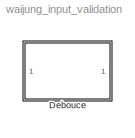
MODEL waijung_input_validation
KIND library
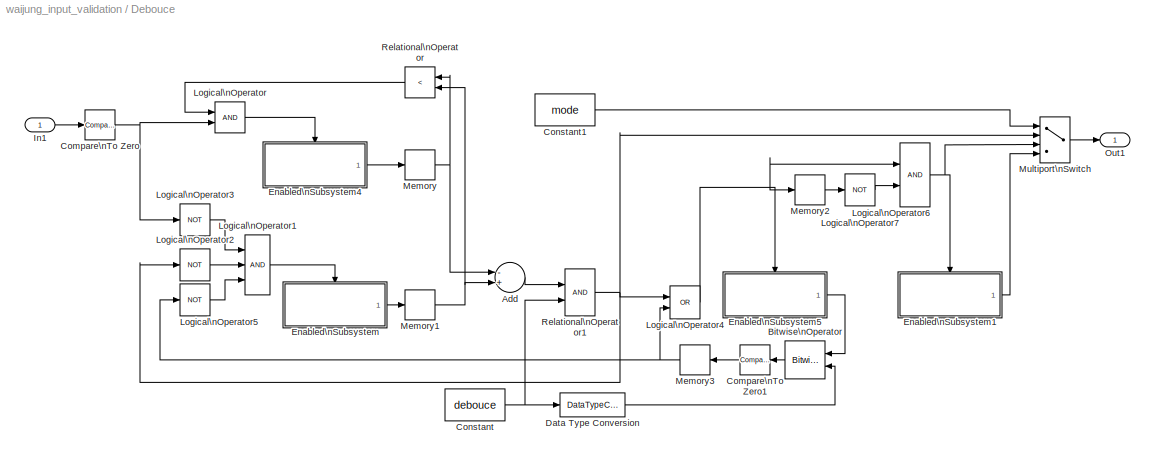
BLOCK [SubSystem] Debouce
  FunctionWithSeparateData = off
  MaskCallbackString = waijung_intput_validation_callback('mode');||waijung_intput_validation_callback('prescale');
  MaskDisplay = disp('Button Pressed\\n(Normal)');
  MaskEnableString = on,on,off
  MaskHideContents = off
  MaskIconFrame = on
  MaskIconOpaque = on
  MaskIconRotate = none
  MaskIconUnits = autoscale
  MaskPortRotate = default
  MaskPromptString = Mode|Prescale (Debouce count)|Debouce value
  MaskSelfModifiable = on
  MaskStyleString = popup(Normal|Single Pulse|Toggle Latch),popup(4|8|16|32|64|128|256|512|1024|2048|4096|8192),edit
  MaskTabNameString = ,,
  MaskToolTipString = on,on,on
  MaskTunableValueString = on,on,on
  MaskValueString = Normal|4|3
  MaskVarAliasString = ,,
  MaskVariables = mode=@1;prescale=@2;debouce=@3;
  MaskVisibilityString = on,on,off
  MinAlgLoopOccurrences = off
  Opaque = off
  Ports = [1, 1]
  PropExecContextOutsideSubsystem = off
  RTWFcnNameOpts = Use subsystem name
  RTWFileNameOpts = Use function name
  RTWSystemCode = Reusable function
  RequestExecContextInheritance = off
  TreatAsAtomicUnit = on
BLOCK [Sum] Debouce/Add
  InputSameDT = off
  Inputs = -+
  OutDataType = fixdt(1, 16)
  OutDataTypeMode = int32
  OutDataTypeStr = int32
  OutScaling = 2^-10
  Ports = [2, 1]
  SaturateOnIntegerOverflow = off
BLOCK [Reference] Debouce/Bitwise\nOperator  REF=simulink/Logic and Bit\nOperations/Bitwise\nOperator
  BitMask = debouce
  BitMaskRealWorld = Stored Integer
  NumInputPorts = 2
  Ports = [2, 1]
  SourceBlock = simulink/Logic and Bit\nOperations/Bitwise\nOperator
  SourceType = Bitwise Operator
  UseBitMask = off
  logicop = AND
BLOCK [Reference] Debouce/Compare\nTo Zero  REF=simulink/Logic and Bit\nOperations/Compare\nTo Zero
  FunctionWithSeparateData = off
  LogicOutDataTypeMode = uint8
  Ports = [1, 1]
  RTWMemSecDataConstants = Inherit from model
  RTWMemSecDataInternal = Inherit from model
  RTWMemSecDataParameters = Inherit from model
  RTWMemSecFuncExecute = Inherit from model
  RTWMemSecFuncInitTerm = Inherit from model
  ShowPortLabels = FromPortIcon
  SourceBlock = simulink/Logic and Bit\nOperations/Compare\nTo Zero
  SourceType = Compare To Zero
  SystemSampleTime = -1
  ZeroCross = off
  relop = ==
BLOCK [Reference] Debouce/Compare\nTo Zero1  REF=simulink/Logic and Bit\nOperations/Compare\nTo Zero
  FunctionWithSeparateData = off
  LogicOutDataTypeMode = boolean
  Ports = [1, 1]
  RTWMemSecDataConstants = Inherit from model
  RTWMemSecDataInternal = Inherit from model
  RTWMemSecDataParameters = Inherit from model
  RTWMemSecFuncExecute = Inherit from model
  RTWMemSecFuncInitTerm = Inherit from model
  ShowPortLabels = FromPortIcon
  SourceBlock = simulink/Logic and Bit\nOperations/Compare\nTo Zero
  SourceType = Compare To Zero
  SystemSampleTime = -1
  ZeroCross = off
  relop = ~=
BLOCK [Constant] Debouce/Constant
  OutDataType = fixdt(1, 16)
  OutDataTypeMode = int32
  OutDataTypeStr = int32
  OutScaling = 2^0
  Value = debouce
BLOCK [Constant] Debouce/Constant1
  OutDataType = fixdt(1, 16)
  OutDataTypeMode = int32
  OutDataTypeStr = int32
  OutScaling = 2^0
  Value = mode
BLOCK [DataTypeConversion] Debouce/Data Type Conversion
  OutDataType = fixdt(1, 16)
  OutDataTypeMode = uint32
  OutDataTypeStr = uint32
  OutScaling = 2^0
  RndMeth = Floor
  SaturateOnIntegerOverflow = off
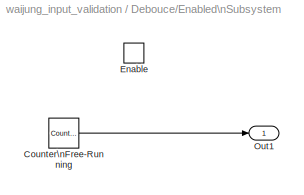
BLOCK [SubSystem] Debouce/Enabled\nSubsystem
  FunctionWithSeparateData = off
  MaskHideContents = off
  MinAlgLoopOccurrences = off
  Opaque = off
  Ports = [0, 1, 1]
  PropExecContextOutsideSubsystem = off
  RTWSystemCode = Auto
  RequestExecContextInheritance = off
  TreatAsAtomicUnit = on
BLOCK [Reference] Debouce/Enabled\nSubsystem/Counter\nFree-Running  REF=simulink/Sources/Counter\nFree-Running
  FunctionWithSeparateData = off
  NumBits = 32
  Ports = [0, 1]
  RTWMemSecDataConstants = Inherit from model
  RTWMemSecDataInternal = Inherit from model
  RTWMemSecDataParameters = Inherit from model
  RTWMemSecFuncExecute = Inherit from model
  RTWMemSecFuncInitTerm = Inherit from model
  ShowPortLabels = FromPortIcon
  SourceBlock = simulink/Sources/Counter\nFree-Running
  SourceType = Counter Free-Running
  SystemSampleTime = -1
  tsamp = -1
BLOCK [EnablePort] Debouce/Enabled\nSubsystem/Enable
  Ports = []
BLOCK [Outport] Debouce/Enabled\nSubsystem/Out1
  IconDisplay = Port number
  InitialOutput = 0
  OutDataType = fixdt(1, 16)
  OutScaling = 2^0
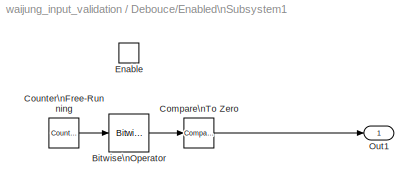
BLOCK [SubSystem] Debouce/Enabled\nSubsystem1
  FunctionWithSeparateData = off
  MaskHideContents = off
  MinAlgLoopOccurrences = off
  Opaque = off
  Ports = [0, 1, 1]
  PropExecContextOutsideSubsystem = off
  RTWSystemCode = Auto
  RequestExecContextInheritance = off
  TreatAsAtomicUnit = on
BLOCK [Reference] Debouce/Enabled\nSubsystem1/Bitwise\nOperator  REF=simulink/Logic and Bit\nOperations/Bitwise\nOperator
  BitMask = 1
  BitMaskRealWorld = Stored Integer
  NumInputPorts = 1
  Ports = [1, 1]
  SourceBlock = simulink/Logic and Bit\nOperations/Bitwise\nOperator
  SourceType = Bitwise Operator
  UseBitMask = on
  logicop = AND
BLOCK [Reference] Debouce/Enabled\nSubsystem1/Compare\nTo Zero  REF=simulink/Logic and Bit\nOperations/Compare\nTo Zero
  FunctionWithSeparateData = off
  LogicOutDataTypeMode = uint8
  Ports = [1, 1]
  RTWMemSecDataConstants = Inherit from model
  RTWMemSecDataInternal = Inherit from model
  RTWMemSecDataParameters = Inherit from model
  RTWMemSecFuncExecute = Inherit from model
  RTWMemSecFuncInitTerm = Inherit from model
  ShowPortLabels = FromPortIcon
  SourceBlock = simulink/Logic and Bit\nOperations/Compare\nTo Zero
  SourceType = Compare To Zero
  SystemSampleTime = -1
  ZeroCross = off
  relop = ==
BLOCK [Reference] Debouce/Enabled\nSubsystem1/Counter\nFree-Running  REF=simulink/Sources/Counter\nFree-Running
  FunctionWithSeparateData = off
  NumBits = 32
  Ports = [0, 1]
  RTWMemSecDataConstants = Inherit from model
  RTWMemSecDataInternal = Inherit from model
  RTWMemSecDataParameters = Inherit from model
  RTWMemSecFuncExecute = Inherit from model
  RTWMemSecFuncInitTerm = Inherit from model
  ShowPortLabels = FromPortIcon
  SourceBlock = simulink/Sources/Counter\nFree-Running
  SourceType = Counter Free-Running
  SystemSampleTime = -1
  tsamp = -1
BLOCK [EnablePort] Debouce/Enabled\nSubsystem1/Enable
  Ports = []
BLOCK [Outport] Debouce/Enabled\nSubsystem1/Out1
  IconDisplay = Port number
  InitialOutput = 0
  OutDataType = fixdt(1, 16)
  OutScaling = 2^0
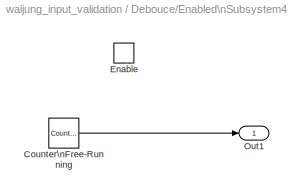
BLOCK [SubSystem] Debouce/Enabled\nSubsystem4
  FunctionWithSeparateData = off
  MaskHideContents = off
  MinAlgLoopOccurrences = off
  Opaque = off
  Ports = [0, 1, 1]
  PropExecContextOutsideSubsystem = off
  RTWSystemCode = Auto
  RequestExecContextInheritance = off
  TreatAsAtomicUnit = on
BLOCK [Reference] Debouce/Enabled\nSubsystem4/Counter\nFree-Running  REF=simulink/Sources/Counter\nFree-Running
  FunctionWithSeparateData = off
  NumBits = 32
  Ports = [0, 1]
  RTWMemSecDataConstants = Inherit from model
  RTWMemSecDataInternal = Inherit from model
  RTWMemSecDataParameters = Inherit from model
  RTWMemSecFuncExecute = Inherit from model
  RTWMemSecFuncInitTerm = Inherit from model
  ShowPortLabels = FromPortIcon
  SourceBlock = simulink/Sources/Counter\nFree-Running
  SourceType = Counter Free-Running
  SystemSampleTime = -1
  tsamp = -1
BLOCK [EnablePort] Debouce/Enabled\nSubsystem4/Enable
  Ports = []
BLOCK [Outport] Debouce/Enabled\nSubsystem4/Out1
  IconDisplay = Port number
  InitialOutput = 0
  OutDataType = fixdt(1, 16)
  OutScaling = 2^0
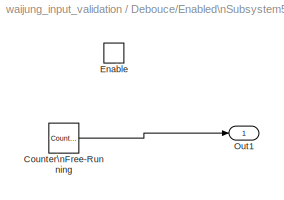
BLOCK [SubSystem] Debouce/Enabled\nSubsystem5
  FunctionWithSeparateData = off
  MaskHideContents = off
  MinAlgLoopOccurrences = off
  Opaque = off
  Ports = [0, 1, 1]
  PropExecContextOutsideSubsystem = off
  RTWSystemCode = Auto
  RequestExecContextInheritance = off
  TreatAsAtomicUnit = on
BLOCK [Reference] Debouce/Enabled\nSubsystem5/Counter\nFree-Running  REF=simulink/Sources/Counter\nFree-Running
  FunctionWithSeparateData = off
  NumBits = 32
  Ports = [0, 1]
  RTWMemSecDataConstants = Inherit from model
  RTWMemSecDataInternal = Inherit from model
  RTWMemSecDataParameters = Inherit from model
  RTWMemSecFuncExecute = Inherit from model
  RTWMemSecFuncInitTerm = Inherit from model
  ShowPortLabels = FromPortIcon
  SourceBlock = simulink/Sources/Counter\nFree-Running
  SourceType = Counter Free-Running
  SystemSampleTime = -1
  tsamp = -1
BLOCK [EnablePort] Debouce/Enabled\nSubsystem5/Enable
  Ports = []
BLOCK [Outport] Debouce/Enabled\nSubsystem5/Out1
  IconDisplay = Port number
  InitialOutput = 0
  OutDataType = fixdt(1, 16)
  OutScaling = 2^0
BLOCK [Inport] Debouce/In1
  IconDisplay = Port number
  OutDataType = fixdt(1, 16)
  OutScaling = 2^0
BLOCK [Logic] Debouce/Logical\nOperator
  AllPortsSameDT = off
  LogicDataType = fixdt(0, 8)
  OutDataTypeMode = boolean
  OutDataTypeStr = boolean
  Ports = [2, 1]
BLOCK [Logic] Debouce/Logical\nOperator1
  AllPortsSameDT = off
  Inputs = 3
  LogicDataType = fixdt(0, 8)
  OutDataTypeMode = boolean
  OutDataTypeStr = boolean
  Ports = [3, 1]
BLOCK [Logic] Debouce/Logical\nOperator2
  AllPortsSameDT = off
  LogicDataType = fixdt(0, 8)
  Operator = NOT
  OutDataTypeMode = boolean
  OutDataTypeStr = boolean
  Ports = [1, 1]
BLOCK [Logic] Debouce/Logical\nOperator3
  AllPortsSameDT = off
  LogicDataType = fixdt(0, 8)
  Operator = NOT
  OutDataTypeMode = boolean
  OutDataTypeStr = boolean
  Ports = [1, 1]
BLOCK [Logic] Debouce/Logical\nOperator4
  AllPortsSameDT = off
  LogicDataType = fixdt(0, 8)
  Operator = OR
  OutDataTypeMode = boolean
  OutDataTypeStr = boolean
  Ports = [2, 1]
BLOCK [Logic] Debouce/Logical\nOperator5
  AllPortsSameDT = off
  LogicDataType = fixdt(0, 8)
  Operator = NOT
  OutDataTypeMode = boolean
  OutDataTypeStr = boolean
  Ports = [1, 1]
BLOCK [Logic] Debouce/Logical\nOperator6
  AllPortsSameDT = off
  LogicDataType = fixdt(0, 8)
  OutDataTypeMode = boolean
  OutDataTypeStr = boolean
  Ports = [2, 1]
BLOCK [Logic] Debouce/Logical\nOperator7
  AllPortsSameDT = off
  LogicDataType = fixdt(0, 8)
  Operator = NOT
  OutDataTypeMode = boolean
  OutDataTypeStr = boolean
  Ports = [1, 1]
BLOCK [Memory] Debouce/Memory
  LinearizeMemory = on
BLOCK [Memory] Debouce/Memory1
  LinearizeMemory = on
BLOCK [Memory] Debouce/Memory2
  LinearizeMemory = on
BLOCK [Memory] Debouce/Memory3
  LinearizeMemory = on
BLOCK [MultiPortSwitch] Debouce/Multiport\nSwitch
  InputSameDT = off
  OutDataType = fixdt(1, 16)
  OutScaling = 2^0
  Ports = [4, 1]
  SaturateOnIntegerOverflow = off
BLOCK [Outport] Debouce/Out1
  IconDisplay = Port number
  OutDataType = fixdt(1, 16)
  OutScaling = 2^0
BLOCK [RelationalOperator] Debouce/Relational\nOperator
  InputSameDT = off
  LogicDataType = fixdt(0, 8)
  LogicOutDataTypeMode = boolean
  Operator = <
  OutDataTypeStr = boolean
BLOCK [RelationalOperator] Debouce/Relational\nOperator1
  LogicDataType = fixdt(0, 8)
  LogicOutDataTypeMode = boolean
  OutDataTypeStr = boolean
LINE Debouce/Add:1 -> Debouce/Relational\nOperator1:1
LINE Debouce/Bitwise\nOperator:1 -> Debouce/Compare\nTo Zero1:1
LINE Debouce/Compare\nTo Zero1:1 -> Debouce/Memory3:1
NET Debouce/Compare\nTo Zero:1 -> Debouce/Logical\nOperator3:1, Debouce/Logical\nOperator:2
LINE Debouce/Constant1:1 -> Debouce/Multiport\nSwitch:1
NET Debouce/Constant:1 -> Debouce/Data Type Conversion:1, Debouce/Relational\nOperator1:2
LINE Debouce/Data Type Conversion:1 -> Debouce/Bitwise\nOperator:2
LINE Debouce/Enabled\nSubsystem/Counter\nFree-Running:1 -> Debouce/Enabled\nSubsystem/Out1:1
LINE Debouce/Enabled\nSubsystem1/Bitwise\nOperator:1 -> Debouce/Enabled\nSubsystem1/Compare\nTo Zero:1
LINE Debouce/Enabled\nSubsystem1/Compare\nTo Zero:1 -> Debouce/Enabled\nSubsystem1/Out1:1
LINE Debouce/Enabled\nSubsystem1/Counter\nFree-Running:1 -> Debouce/Enabled\nSubsystem1/Bitwise\nOperator:1
LINE Debouce/Enabled\nSubsystem1:1 -> Debouce/Multiport\nSwitch:4
LINE Debouce/Enabled\nSubsystem4/Counter\nFree-Running:1 -> Debouce/Enabled\nSubsystem4/Out1:1
LINE Debouce/Enabled\nSubsystem4:1 -> Debouce/Memory:1
LINE Debouce/Enabled\nSubsystem5/Counter\nFree-Running:1 -> Debouce/Enabled\nSubsystem5/Out1:1
LINE Debouce/Enabled\nSubsystem5:1 -> Debouce/Bitwise\nOperator:1
LINE Debouce/Enabled\nSubsystem:1 -> Debouce/Memory1:1
LINE Debouce/In1:1 -> Debouce/Compare\nTo Zero:1
LINE Debouce/Logical\nOperator1:1 -> Debouce/Enabled\nSubsystem:enable
LINE Debouce/Logical\nOperator2:1 -> Debouce/Logical\nOperator1:2
LINE Debouce/Logical\nOperator3:1 -> Debouce/Logical\nOperator1:1
NET Debouce/Logical\nOperator4:1 -> Debouce/Enabled\nSubsystem5:enable, Debouce/Logical\nOperator6:1, Debouce/Memory2:1
LINE Debouce/Logical\nOperator5:1 -> Debouce/Logical\nOperator1:3
NET Debouce/Logical\nOperator6:1 -> Debouce/Enabled\nSubsystem1:enable, Debouce/Multiport\nSwitch:3
LINE Debouce/Logical\nOperator7:1 -> Debouce/Logical\nOperator6:2
LINE Debouce/Logical\nOperator:1 -> Debouce/Enabled\nSubsystem4:enable
NET Debouce/Memory1:1 -> Debouce/Add:2, Debouce/Relational\nOperator:2
LINE Debouce/Memory2:1 -> Debouce/Logical\nOperator7:1
NET Debouce/Memory3:1 -> Debouce/Logical\nOperator4:2, Debouce/Logical\nOperator5:1
NET Debouce/Memory:1 -> Debouce/Add:1, Debouce/Relational\nOperator:1
LINE Debouce/Multiport\nSwitch:1 -> Debouce/Out1:1
NET Debouce/Relational\nOperator1:1 -> Debouce/Logical\nOperator2:1, Debouce/Logical\nOperator4:1, Debouce/Multiport\nSwitch:2
LINE Debouce/Relational\nOperator:1 -> Debouce/Logical\nOperator:1
note: NET lines group one-source signal fan-out (src -> all destinations, sorted); 1:1 wires keep LINE
